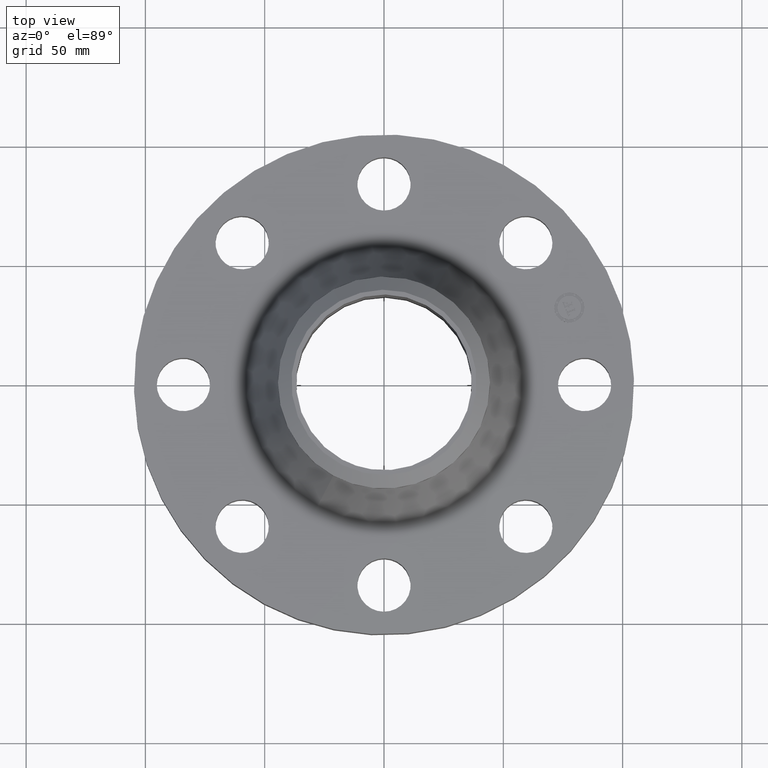
[diagram: clean part render]
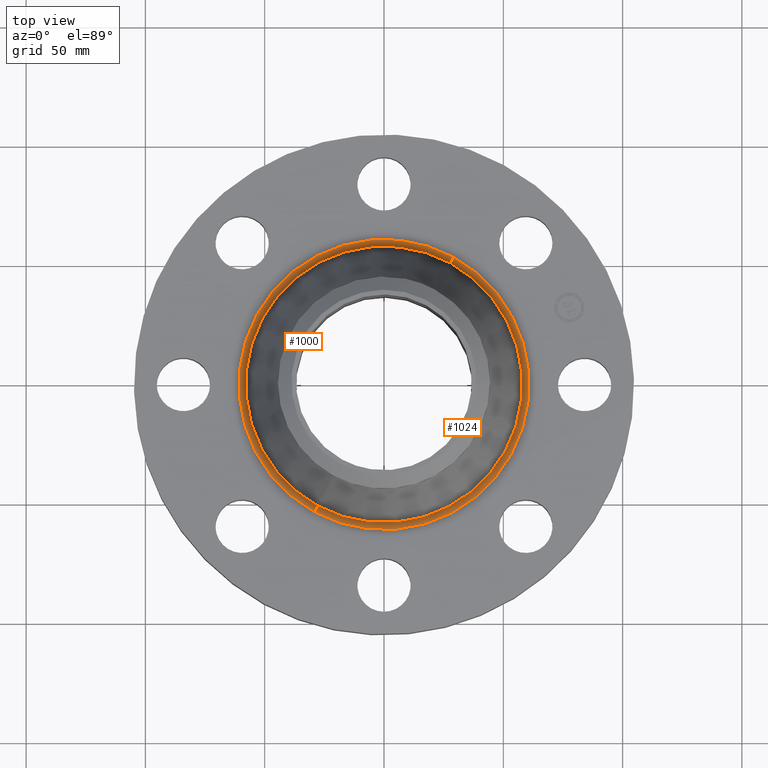
[diagram: same view with one multi-face feature highlighted, each face labeled with its STEP entity id]
A machine part, top view. The highlighted faces form ONE feature: a constant-radius fillet chain: 2 tangent blend faces with common blend radius 3.048 mm. The faces share edges in the B-rep.
Their STEP definitions:
[1] entity #1000 (Torus):
#344=AXIS2_PLACEMENT_3D('Circle Axis2P3D',#342,#343,$) ;
#973=AXIS2_PLACEMENT_3D('Torus Axis2P3D',#970,#971,#972) ;
#977=AXIS2_PLACEMENT_3D('Circle Axis2P3D',#975,#976,$) ;
#984=AXIS2_PLACEMENT_3D('Circle Axis2P3D',#982,#983,$) ;
#991=AXIS2_PLACEMENT_3D('Circle Axis2P3D',#989,#990,$) ;
#342=CARTESIAN_POINT('Axis2P3D Location',(0.,5.33410586042E-012,1.06)) ;
#346=CARTESIAN_POINT('Vertex',(-1.1482394859,-2.10183828053,1.06)) ;
#348=CARTESIAN_POINT('Vertex',(1.1482394859,2.10183828052,1.06)) ;
#970=CARTESIAN_POINT('Axis2P3D Location',(0.,0.,1.18)) ;
#975=CARTESIAN_POINT('Axis2P3D Location',(-1.1482394859,-2.10183828053,1.18)) ;
#979=CARTESIAN_POINT('Vertex',(-1.09396064071,-2.00248152086,1.14022511755)) ;
#982=CARTESIAN_POINT('Axis2P3D Location',(0.,0.,1.14022511755)) ;
#986=CARTESIAN_POINT('Vertex',(1.09396064071,2.00248152086,1.14022511755)) ;
#989=CARTESIAN_POINT('Axis2P3D Location',(1.1482394859,2.10183828053,1.18)) ;
#343=DIRECTION('Axis2P3D Direction',(0.,0.,-0.0393700787402)) ;
#971=DIRECTION('Axis2P3D Direction',(0.,0.,-0.0393700787402)) ;
#972=DIRECTION('Axis2P3D XDirection',(-0.0188750212049,-0.0345504945626,0.)) ;
#976=DIRECTION('Axis2P3D Direction',(0.0345504945626,-0.0188750212049,0.)) ;
#983=DIRECTION('Axis2P3D Direction',(-0.,0.,-0.0393700787402)) ;
#990=DIRECTION('Axis2P3D Direction',(-0.0345504945626,0.0188750212049,0.)) ;
#995=ORIENTED_EDGE('',*,*,#350,.F.) ;
#996=ORIENTED_EDGE('',*,*,#981,.T.) ;
#997=ORIENTED_EDGE('',*,*,#988,.T.) ;
#998=ORIENTED_EDGE('',*,*,#993,.F.) ;
#1000=ADVANCED_FACE('PartBody',(#999),#974,.F.) ;
#345=CIRCLE('generated circle',#344,2.39503195686) ;
#978=CIRCLE('generated circle',#977,0.12) ;
#985=CIRCLE('generated circle',#984,2.2818155326) ;
#992=CIRCLE('generated circle',#991,0.12) ;
#974=TOROIDAL_SURFACE('homeo Torus',#973,2.39503195688,0.12) ;
#350=EDGE_CURVE('',#347,#349,#345,.T.) ;
#981=EDGE_CURVE('',#347,#980,#978,.T.) ;
#988=EDGE_CURVE('',#980,#987,#985,.T.) ;
#993=EDGE_CURVE('',#349,#987,#992,.T.) ;
#994=EDGE_LOOP('',(#995,#996,#997,#998)) ;
#999=FACE_OUTER_BOUND('',#994,.T.) ;
#347=VERTEX_POINT('',#346) ;
#349=VERTEX_POINT('',#348) ;
#980=VERTEX_POINT('',#979) ;
#987=VERTEX_POINT('',#986) ;
[2] entity #1024 (Torus):
#353=AXIS2_PLACEMENT_3D('Circle Axis2P3D',#351,#352,$) ;
#977=AXIS2_PLACEMENT_3D('Circle Axis2P3D',#975,#976,$) ;
#991=AXIS2_PLACEMENT_3D('Circle Axis2P3D',#989,#990,$) ;
#1011=AXIS2_PLACEMENT_3D('Torus Axis2P3D',#1008,#1009,#1010) ;
#1015=AXIS2_PLACEMENT_3D('Circle Axis2P3D',#1013,#1014,$) ;
#346=CARTESIAN_POINT('Vertex',(-1.1482394859,-2.10183828053,1.06)) ;
#348=CARTESIAN_POINT('Vertex',(1.1482394859,2.10183828052,1.06)) ;
#351=CARTESIAN_POINT('Axis2P3D Location',(0.,5.33410586042E-012,1.06)) ;
#975=CARTESIAN_POINT('Axis2P3D Location',(-1.1482394859,-2.10183828053,1.18)) ;
#979=CARTESIAN_POINT('Vertex',(-1.09396064071,-2.00248152086,1.14022511755)) ;
#986=CARTESIAN_POINT('Vertex',(1.09396064071,2.00248152086,1.14022511755)) ;
#989=CARTESIAN_POINT('Axis2P3D Location',(1.1482394859,2.10183828053,1.18)) ;
#1008=CARTESIAN_POINT('Axis2P3D Location',(0.,0.,1.18)) ;
#1013=CARTESIAN_POINT('Axis2P3D Location',(0.,0.,1.14022511755)) ;
#352=DIRECTION('Axis2P3D Direction',(0.,0.,-0.0393700787402)) ;
#976=DIRECTION('Axis2P3D Direction',(0.0345504945626,-0.0188750212049,0.)) ;
#990=DIRECTION('Axis2P3D Direction',(-0.0345504945626,0.0188750212049,0.)) ;
#1009=DIRECTION('Axis2P3D Direction',(0.,0.,-0.0393700787402)) ;
#1010=DIRECTION('Axis2P3D XDirection',(0.0188750212049,0.0345504945626,0.)) ;
#1014=DIRECTION('Axis2P3D Direction',(-0.,0.,-0.0393700787402)) ;
#1019=ORIENTED_EDGE('',*,*,#355,.F.) ;
#1020=ORIENTED_EDGE('',*,*,#993,.T.) ;
#1021=ORIENTED_EDGE('',*,*,#1017,.T.) ;
#1022=ORIENTED_EDGE('',*,*,#981,.F.) ;
#1024=ADVANCED_FACE('PartBody',(#1023),#1012,.F.) ;
#354=CIRCLE('generated circle',#353,2.39503195686) ;
#978=CIRCLE('generated circle',#977,0.12) ;
#992=CIRCLE('generated circle',#991,0.12) ;
#1016=CIRCLE('generated circle',#1015,2.2818155326) ;
#1012=TOROIDAL_SURFACE('homeo Torus',#1011,2.39503195688,0.12) ;
#355=EDGE_CURVE('',#349,#347,#354,.T.) ;
#981=EDGE_CURVE('',#347,#980,#978,.T.) ;
#993=EDGE_CURVE('',#349,#987,#992,.T.) ;
#1017=EDGE_CURVE('',#987,#980,#1016,.T.) ;
#1018=EDGE_LOOP('',(#1019,#1020,#1021,#1022)) ;
#1023=FACE_OUTER_BOUND('',#1018,.T.) ;
#347=VERTEX_POINT('',#346) ;
#349=VERTEX_POINT('',#348) ;
#980=VERTEX_POINT('',#979) ;
#987=VERTEX_POINT('',#986) ;